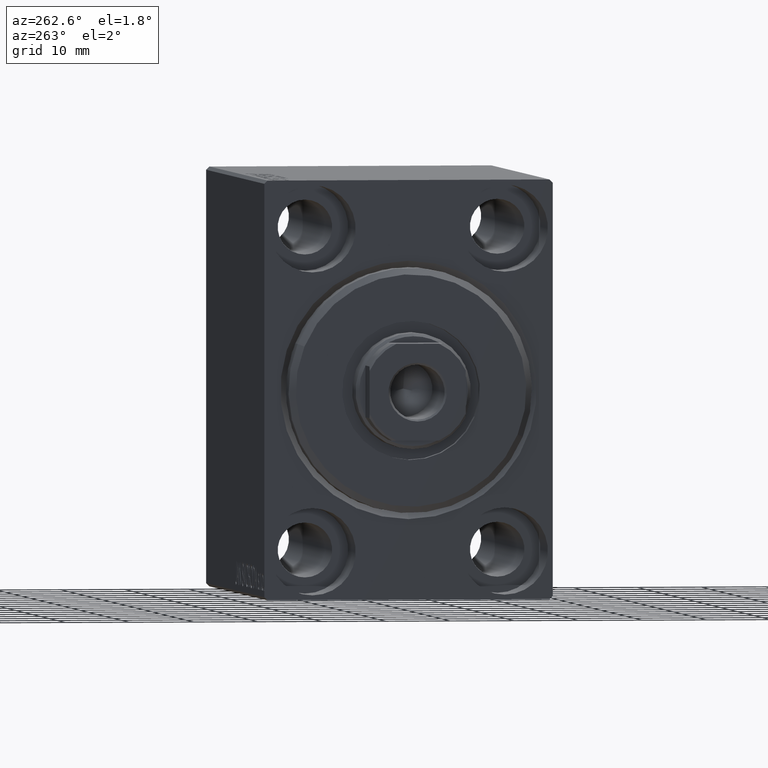
[diagram: clean part render]
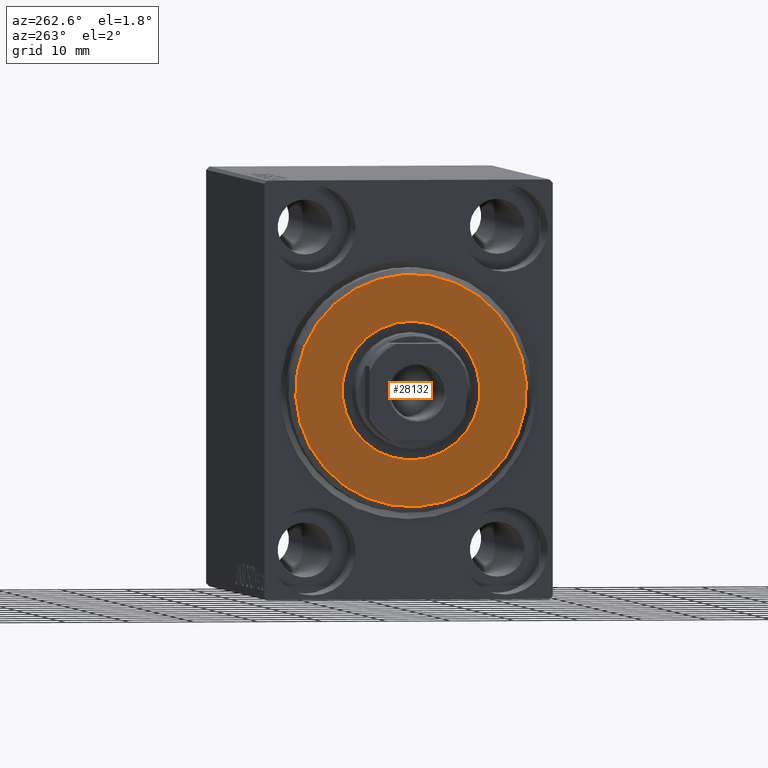
[diagram: same view with one face highlighted and labeled with its STEP entity id]
A machine part, auxiliary view. The second image highlights one B-rep face of the part: STEP entity #28132.
In plain terms, the highlighted planar face has unit normal (-1, 0, 0).
Its self-contained STEP definition (entity closure, byte-faithful):
#891 = VERTEX_POINT ( 'NONE', #31977 ) ;
#1193 = DIRECTION ( 'NONE',  ( 0.000000000000000000, 0.000000000000000000, -1.000000000000000000 ) ) ;
#1958 = ORIENTED_EDGE ( 'NONE', *, *, #36753, .T. ) ;
#3672 = DIRECTION ( 'NONE',  ( -1.000000000000000000, 0.000000000000000000, -0.000000000000000000 ) ) ;
#3699 = DIRECTION ( 'NONE',  ( 1.000000000000000000, -0.000000000000000000, 0.000000000000000000 ) ) ;
#4916 = EDGE_CURVE ( 'NONE', #40224, #891, #22670, .T. ) ;
#7183 = AXIS2_PLACEMENT_3D ( 'NONE', #29366, #25150, #42914 ) ;
#7865 = ORIENTED_EDGE ( 'NONE', *, *, #22564, .T. ) ;
#10564 = CARTESIAN_POINT ( 'NONE',  ( 3.000000000000000000, 0.000000000000000000, 0.000000000000000000 ) ) ;
#11185 = AXIS2_PLACEMENT_3D ( 'NONE', #40516, #20501, #20279 ) ;
#14935 = VERTEX_POINT ( 'NONE', #31858 ) ;
#14943 = AXIS2_PLACEMENT_3D ( 'NONE', #43915, #34375, #24357 ) ;
#15037 = CIRCLE ( 'NONE', #14943, 17.99999999999999645 ) ;
#16144 = CIRCLE ( 'NONE', #11185, 10.75000000000000000 ) ;
#17044 = FACE_BOUND ( 'NONE', #31942, .T. ) ;
#19884 = VERTEX_POINT ( 'NONE', #28284 ) ;
#20279 = DIRECTION ( 'NONE',  ( 0.000000000000000000, 0.000000000000000000, -1.000000000000000000 ) ) ;
#20501 = DIRECTION ( 'NONE',  ( -1.000000000000000000, 0.000000000000000000, -0.000000000000000000 ) ) ;
#21041 = EDGE_LOOP ( 'NONE', ( #32621, #1958 ) ) ;
#22564 = EDGE_CURVE ( 'NONE', #891, #40224, #16144, .T. ) ;
#22670 = CIRCLE ( 'NONE', #24110, 10.75000000000000000 ) ;
#24110 = AXIS2_PLACEMENT_3D ( 'NONE', #10564, #3672, #1193 ) ;
#24164 = CARTESIAN_POINT ( 'NONE',  ( 3.000000000000000000, 0.000000000000000000, 0.000000000000000000 ) ) ;
#24357 = DIRECTION ( 'NONE',  ( 0.000000000000000000, 0.000000000000000000, -1.000000000000000000 ) ) ;
#25150 = DIRECTION ( 'NONE',  ( 1.000000000000000000, -0.000000000000000000, 0.000000000000000000 ) ) ;
#25549 = AXIS2_PLACEMENT_3D ( 'NONE', #24164, #3699, #27072 ) ;
#26971 = ORIENTED_EDGE ( 'NONE', *, *, #4916, .T. ) ;
#27070 = CIRCLE ( 'NONE', #7183, 17.99999999999999645 ) ;
#27072 = DIRECTION ( 'NONE',  ( 0.000000000000000000, 0.000000000000000000, -1.000000000000000000 ) ) ;
#28132 = ADVANCED_FACE ( 'NONE', ( #30396, #17044 ), #40842, .T. ) ;
#28284 = CARTESIAN_POINT ( 'NONE',  ( 3.000000000000000000, 2.265596578422603002E-15, -17.99999999999999645 ) ) ;
#29366 = CARTESIAN_POINT ( 'NONE',  ( 3.000000000000000000, 0.000000000000000000, 0.000000000000000000 ) ) ;
#30396 = FACE_OUTER_BOUND ( 'NONE', #21041, .T. ) ;
#31858 = CARTESIAN_POINT ( 'NONE',  ( 3.000000000000000000, 0.000000000000000000, 17.99999999999999645 ) ) ;
#31942 = EDGE_LOOP ( 'NONE', ( #26971, #7865 ) ) ;
#31977 = CARTESIAN_POINT ( 'NONE',  ( 3.000000000000000000, 1.316495309083404223E-15, -10.75000000000000000 ) ) ;
#32621 = ORIENTED_EDGE ( 'NONE', *, *, #34094, .T. ) ;
#34094 = EDGE_CURVE ( 'NONE', #14935, #19884, #15037, .T. ) ;
#34375 = DIRECTION ( 'NONE',  ( 1.000000000000000000, -0.000000000000000000, 0.000000000000000000 ) ) ;
#36753 = EDGE_CURVE ( 'NONE', #19884, #14935, #27070, .T. ) ;
#38663 = CARTESIAN_POINT ( 'NONE',  ( 3.000000000000000000, 0.000000000000000000, 10.75000000000000000 ) ) ;
#40224 = VERTEX_POINT ( 'NONE', #38663 ) ;
#40516 = CARTESIAN_POINT ( 'NONE',  ( 3.000000000000000000, 0.000000000000000000, 0.000000000000000000 ) ) ;
#40842 = PLANE ( 'NONE',  #25549 ) ;
#42914 = DIRECTION ( 'NONE',  ( 0.000000000000000000, 0.000000000000000000, -1.000000000000000000 ) ) ;
#43915 = CARTESIAN_POINT ( 'NONE',  ( 3.000000000000000000, 0.000000000000000000, 0.000000000000000000 ) ) ;